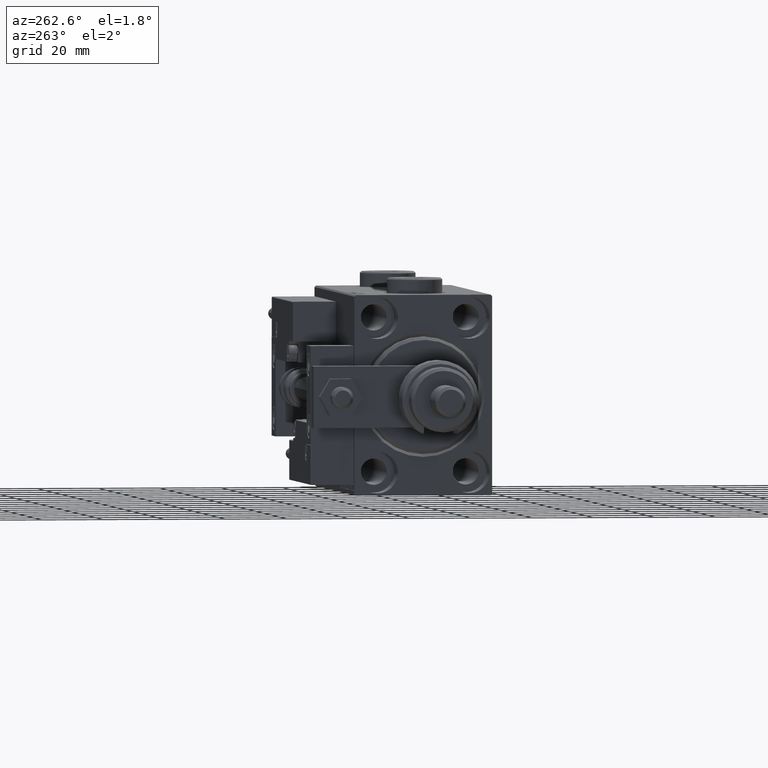
[diagram: clean part render]
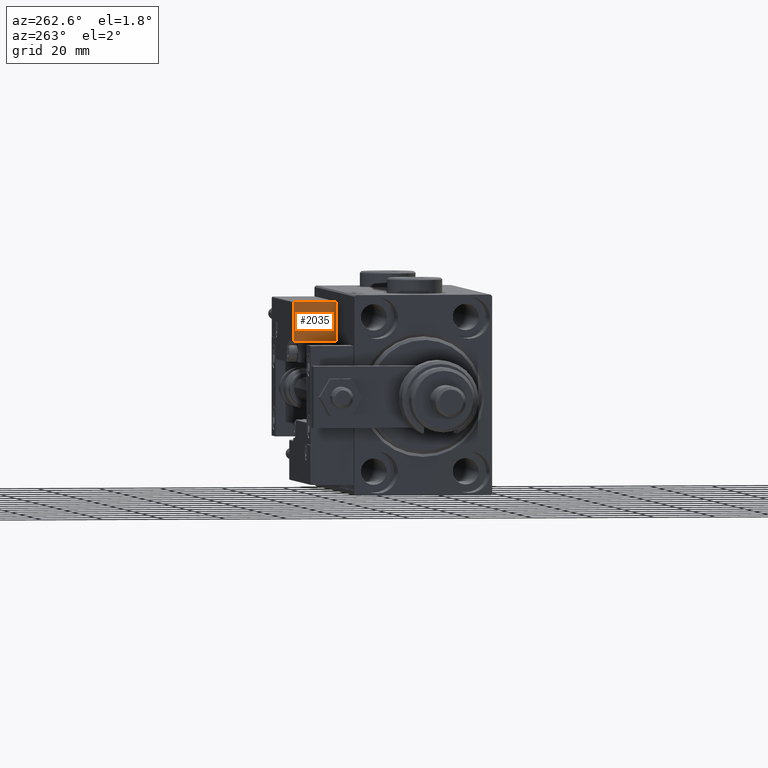
[diagram: same view with one face highlighted and labeled with its STEP entity id]
A machine part, auxiliary view. The second image highlights one B-rep face of the part: STEP entity #2035.
In plain terms, the highlighted planar face has unit normal (1, -0, -0).
Its self-contained STEP definition (entity closure, byte-faithful):
#653 = ORIENTED_EDGE ( 'NONE', *, *, #20556, .T. ) ;
#2035 = ADVANCED_FACE ( 'NONE', ( #46573 ), #37518, .F. ) ;
#2539 = LINE ( 'NONE', #36078, #45357 ) ;
#6997 = AXIS2_PLACEMENT_3D ( 'NONE', #42449, #54281, #21574 ) ;
#7215 = VERTEX_POINT ( 'NONE', #22406 ) ;
#7986 = VERTEX_POINT ( 'NONE', #21609 ) ;
#9309 = DIRECTION ( 'NONE',  ( 0.000000000000000000, 1.000000000000000000, 0.000000000000000000 ) ) ;
#10154 = VERTEX_POINT ( 'NONE', #17743 ) ;
#10600 = EDGE_CURVE ( 'NONE', #10154, #7215, #33014, .T. ) ;
#15991 = CARTESIAN_POINT ( 'NONE',  ( 27.00000000000006395, 20.00000000000001776, 14.00000000000000000 ) ) ;
#17635 = CARTESIAN_POINT ( 'NONE',  ( 27.00000000000006395, 7.000000000000007994, 0.000000000000000000 ) ) ;
#17743 = CARTESIAN_POINT ( 'NONE',  ( 27.00000000000006395, 20.00000000000001776, 13.70000000000000107 ) ) ;
#17994 = CARTESIAN_POINT ( 'NONE',  ( 27.00000000000006395, 7.000000000000007994, 14.00000000000000000 ) ) ;
#19219 = ORIENTED_EDGE ( 'NONE', *, *, #21697, .T. ) ;
#20556 = EDGE_CURVE ( 'NONE', #7986, #41691, #39146, .T. ) ;
#21451 = VECTOR ( 'NONE', #28076, 1000.000000000000000 ) ;
#21574 = DIRECTION ( 'NONE',  ( 0.000000000000000000, 0.000000000000000000, 1.000000000000000000 ) ) ;
#21609 = CARTESIAN_POINT ( 'NONE',  ( 27.00000000000006395, 7.000000000000007994, 13.70000000000000107 ) ) ;
#21697 = EDGE_CURVE ( 'NONE', #10154, #7986, #2539, .T. ) ;
#22137 = DIRECTION ( 'NONE',  ( -0.000000000000000000, -0.000000000000000000, -1.000000000000000000 ) ) ;
#22406 = CARTESIAN_POINT ( 'NONE',  ( 27.00000000000006395, 20.00000000000001776, 0.000000000000000000 ) ) ;
#26672 = EDGE_LOOP ( 'NONE', ( #29126, #19219, #653, #38724 ) ) ;
#27548 = DIRECTION ( 'NONE',  ( -0.000000000000000000, -1.000000000000000000, -0.000000000000000000 ) ) ;
#28076 = DIRECTION ( 'NONE',  ( -0.000000000000000000, -0.000000000000000000, -1.000000000000000000 ) ) ;
#28641 = VECTOR ( 'NONE', #22137, 1000.000000000000000 ) ;
#28761 = VECTOR ( 'NONE', #9309, 1000.000000000000000 ) ;
#29126 = ORIENTED_EDGE ( 'NONE', *, *, #10600, .F. ) ;
#33014 = LINE ( 'NONE', #15991, #21451 ) ;
#36078 = CARTESIAN_POINT ( 'NONE',  ( 27.00000000000006395, 7.000000000000007994, 13.70000000000000107 ) ) ;
#37518 = PLANE ( 'NONE',  #6997 ) ;
#38724 = ORIENTED_EDGE ( 'NONE', *, *, #54116, .T. ) ;
#39146 = LINE ( 'NONE', #17994, #28641 ) ;
#41691 = VERTEX_POINT ( 'NONE', #17635 ) ;
#42449 = CARTESIAN_POINT ( 'NONE',  ( 27.00000000000006395, 7.000000000000007994, 14.00000000000000000 ) ) ;
#45357 = VECTOR ( 'NONE', #27548, 1000.000000000000000 ) ;
#46573 = FACE_OUTER_BOUND ( 'NONE', #26672, .T. ) ;
#46968 = CARTESIAN_POINT ( 'NONE',  ( 27.00000000000006395, 7.000000000000007994, 0.000000000000000000 ) ) ;
#51118 = LINE ( 'NONE', #46968, #28761 ) ;
#54116 = EDGE_CURVE ( 'NONE', #41691, #7215, #51118, .T. ) ;
#54281 = DIRECTION ( 'NONE',  ( -1.000000000000000000, 0.000000000000000000, 0.000000000000000000 ) ) ;